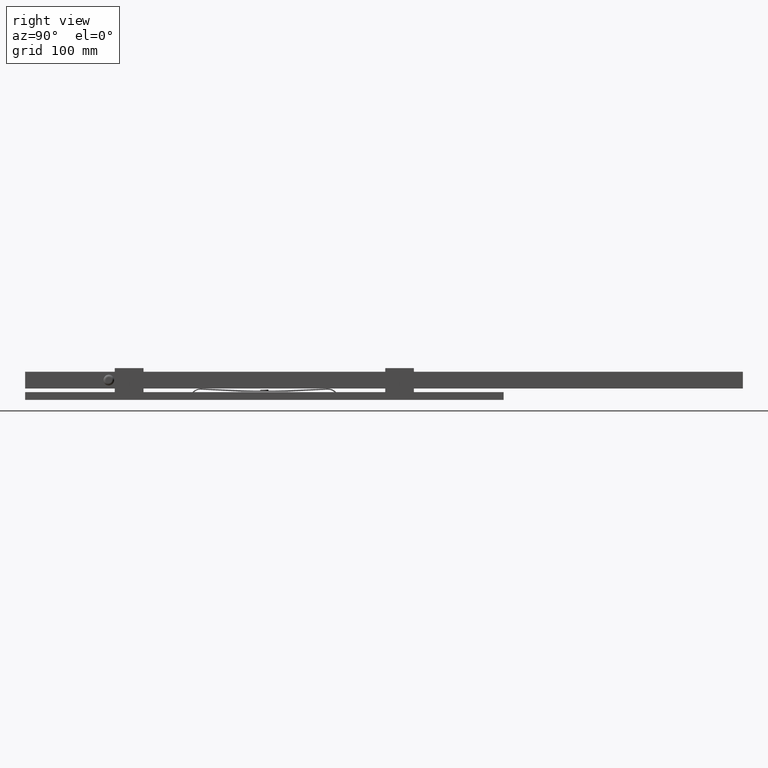
[diagram: clean part render]
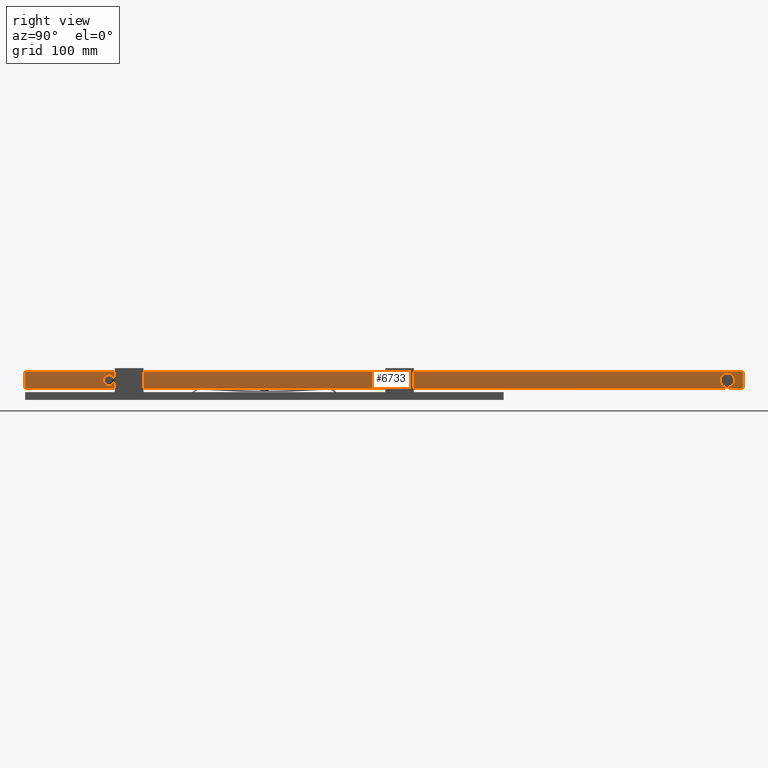
[diagram: same view with one face highlighted and labeled with its STEP entity id]
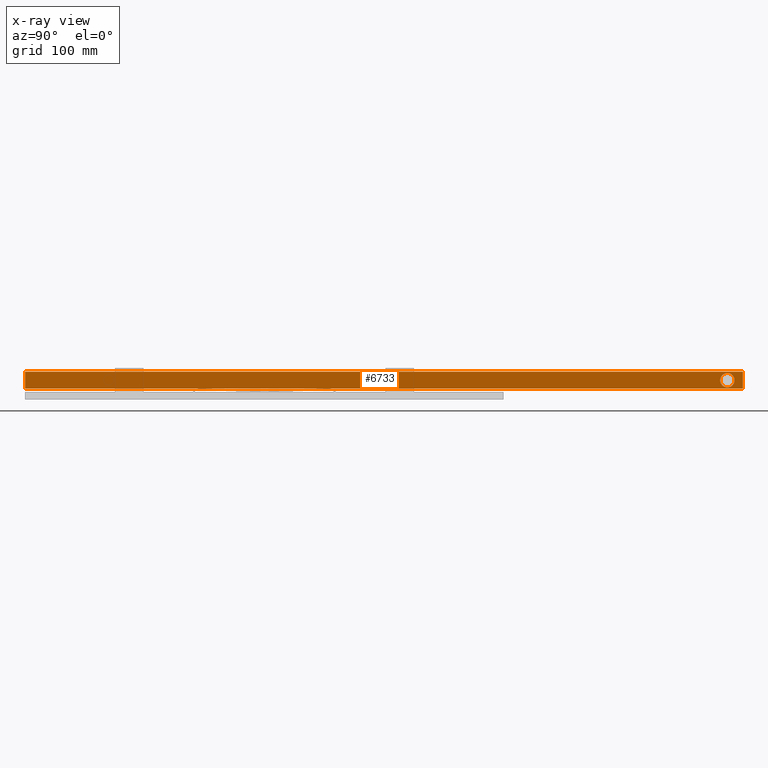
[diagram: x-ray of the same camera — body ghosted, the highlighted face saturated]
A machine part, right view. The second image highlights one B-rep face of the part: STEP entity #6733.
The next image is the same camera in x-ray: the body ghosted, the highlighted face saturated — about 0% of this face is hidden behind the body in this view.
In plain terms, the highlighted planar face has unit normal (1, 0, 0).
Its self-contained STEP definition (entity closure, byte-faithful):
#15 = ORIENTED_EDGE ( 'NONE', *, *, #7530, .F. ) ;
#792 = FACE_OUTER_BOUND ( 'NONE', #5286, .T. ) ;
#956 = ORIENTED_EDGE ( 'NONE', *, *, #10533, .T. ) ;
#1267 = CARTESIAN_POINT ( 'NONE',  ( 6.672417362045123923, 400.0000000000000000, 9.496747849661481666 ) ) ;
#1654 = LINE ( 'NONE', #3169, #10947 ) ;
#1989 = AXIS2_PLACEMENT_3D ( 'NONE', #12055, #9115, #5631 ) ;
#2356 = DIRECTION ( 'NONE',  ( 0.000000000000000000, 0.000000000000000000, -1.000000000000000000 ) ) ;
#2398 = PLANE ( 'NONE',  #1989 ) ;
#2431 = DIRECTION ( 'NONE',  ( 1.000000000000000000, 0.000000000000000000, 0.000000000000000000 ) ) ;
#2723 = CARTESIAN_POINT ( 'NONE',  ( 6.672417362045123923, 400.0000000000000000, 23.49674784966148167 ) ) ;
#3169 = CARTESIAN_POINT ( 'NONE',  ( 6.672417362045123923, -199.9999999999999716, 9.496747849661481666 ) ) ;
#3315 = CARTESIAN_POINT ( 'NONE',  ( 6.672417362045123923, 387.0000000000000000, 16.36032359920136514 ) ) ;
#3401 = DIRECTION ( 'NONE',  ( 0.000000000000000000, 0.000000000000000000, 1.000000000000000000 ) ) ;
#3461 = ORIENTED_EDGE ( 'NONE', *, *, #6139, .T. ) ;
#3617 = CIRCLE ( 'NONE', #4990, 6.000000000000003553 ) ;
#4180 = DIRECTION ( 'NONE',  ( -0.000000000000000000, -1.000000000000000000, -0.000000000000000000 ) ) ;
#4990 = AXIS2_PLACEMENT_3D ( 'NONE', #3315, #2431, #2356 ) ;
#5286 = EDGE_LOOP ( 'NONE', ( #10121, #5648, #956, #3461 ) ) ;
#5293 = CARTESIAN_POINT ( 'NONE',  ( 6.672417362045123923, 400.0000000000000000, 9.496747849661481666 ) ) ;
#5309 = DIRECTION ( 'NONE',  ( 0.000000000000000000, 0.000000000000000000, 1.000000000000000000 ) ) ;
#5480 = DIRECTION ( 'NONE',  ( -0.000000000000000000, -1.000000000000000000, -0.000000000000000000 ) ) ;
#5608 = CARTESIAN_POINT ( 'NONE',  ( 6.672417362045123923, 400.0000000000000000, 23.49674784966148167 ) ) ;
#5631 = DIRECTION ( 'NONE',  ( 0.000000000000000000, 0.000000000000000000, -1.000000000000000000 ) ) ;
#5648 = ORIENTED_EDGE ( 'NONE', *, *, #7348, .F. ) ;
#6002 = VERTEX_POINT ( 'NONE', #8250 ) ;
#6139 = EDGE_CURVE ( 'NONE', #10761, #6519, #11443, .T. ) ;
#6177 = LINE ( 'NONE', #1267, #9474 ) ;
#6519 = VERTEX_POINT ( 'NONE', #12032 ) ;
#6733 = ADVANCED_FACE ( 'NONE', ( #7849, #792 ), #2398, .T. ) ;
#7348 = EDGE_CURVE ( 'NONE', #7885, #6002, #6177, .T. ) ;
#7530 = EDGE_CURVE ( 'NONE', #11517, #11517, #3617, .T. ) ;
#7849 = FACE_BOUND ( 'NONE', #11158, .T. ) ;
#7885 = VERTEX_POINT ( 'NONE', #9210 ) ;
#8250 = CARTESIAN_POINT ( 'NONE',  ( 6.672417362045123923, -199.9999999999999716, 9.496747849661481666 ) ) ;
#9001 = LINE ( 'NONE', #5293, #10781 ) ;
#9115 = DIRECTION ( 'NONE',  ( 1.000000000000000000, 0.000000000000000000, 0.000000000000000000 ) ) ;
#9210 = CARTESIAN_POINT ( 'NONE',  ( 6.672417362045123923, 400.0000000000000000, 9.496747849661481666 ) ) ;
#9474 = VECTOR ( 'NONE', #4180, 1000.000000000000000 ) ;
#10016 = EDGE_CURVE ( 'NONE', #6002, #6519, #1654, .T. ) ;
#10121 = ORIENTED_EDGE ( 'NONE', *, *, #10016, .F. ) ;
#10533 = EDGE_CURVE ( 'NONE', #7885, #10761, #9001, .T. ) ;
#10761 = VERTEX_POINT ( 'NONE', #2723 ) ;
#10781 = VECTOR ( 'NONE', #3401, 1000.000000000000000 ) ;
#10947 = VECTOR ( 'NONE', #5309, 1000.000000000000000 ) ;
#11158 = EDGE_LOOP ( 'NONE', ( #15 ) ) ;
#11443 = LINE ( 'NONE', #5608, #11591 ) ;
#11517 = VERTEX_POINT ( 'NONE', #12056 ) ;
#11591 = VECTOR ( 'NONE', #5480, 1000.000000000000000 ) ;
#12032 = CARTESIAN_POINT ( 'NONE',  ( 6.672417362045123923, -199.9999999999999716, 23.49674784966148167 ) ) ;
#12055 = CARTESIAN_POINT ( 'NONE',  ( 6.672417362045123923, 400.0000000000000000, 9.496747849661481666 ) ) ;
#12056 = CARTESIAN_POINT ( 'NONE',  ( 6.672417362045123923, 387.0000000000000000, 10.36032359920136159 ) ) ;